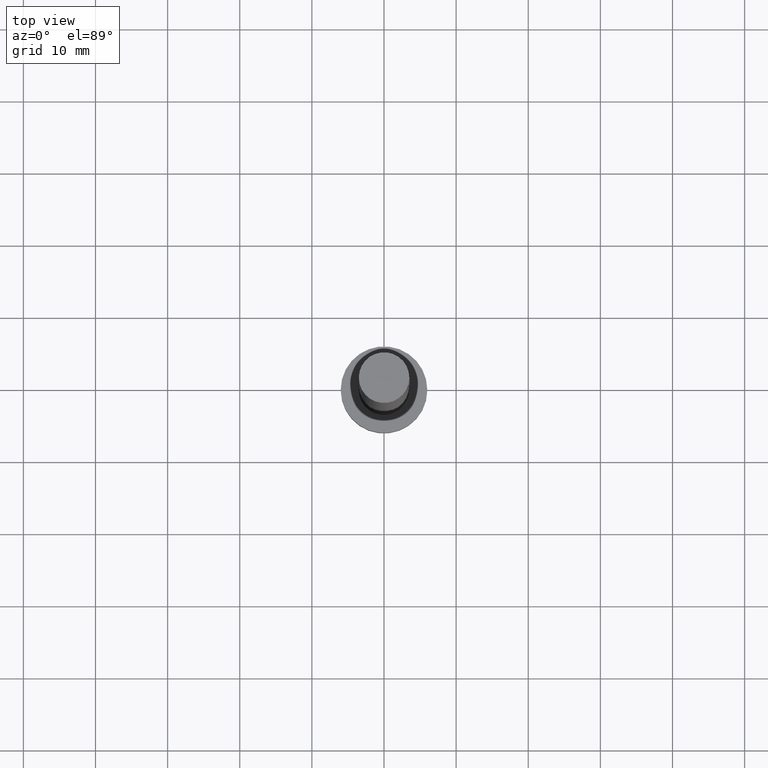
[diagram: clean part render]
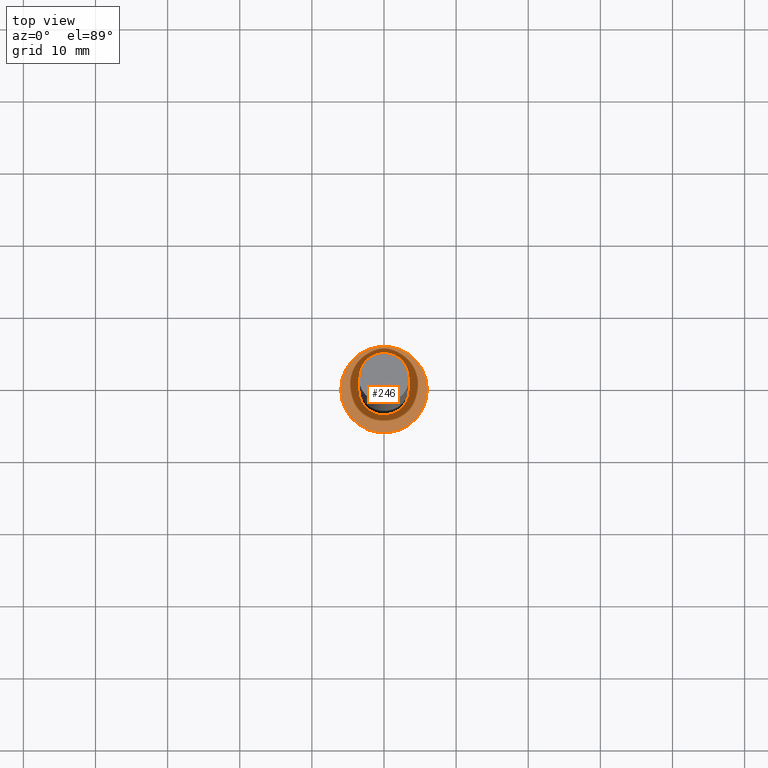
[diagram: same view with one face highlighted and labeled with its STEP entity id]
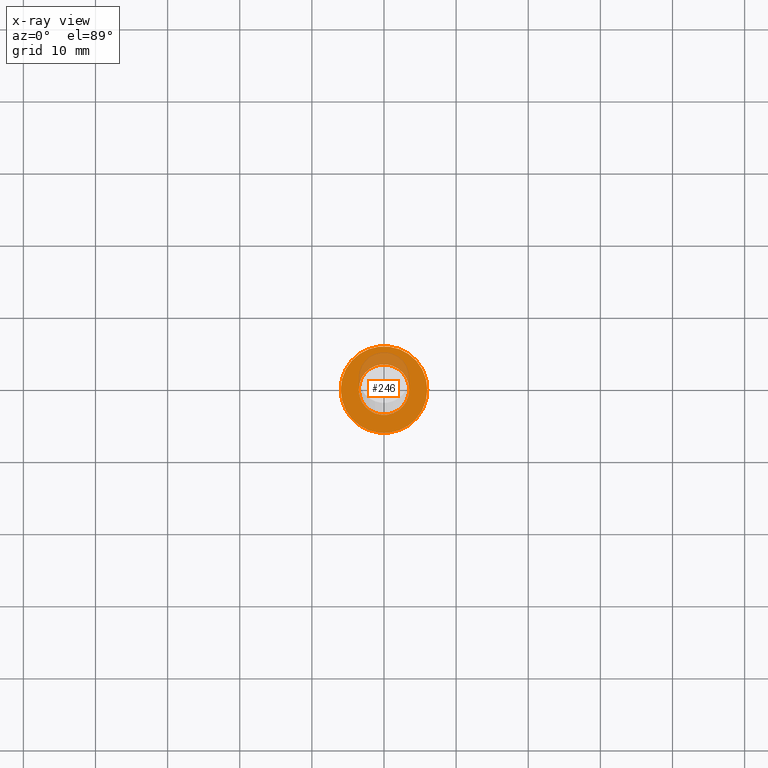
[diagram: x-ray of the same camera — body ghosted, the highlighted face saturated]
A machine part, top view. The second image highlights one B-rep face of the part: STEP entity #246.
The next image is the same camera in x-ray: the body ghosted, the highlighted face saturated — about 16% of this face is hidden behind the body in this view.
In plain terms, the highlighted planar face has unit normal (0, 0, 1).
Its self-contained STEP definition (entity closure, byte-faithful):
#1 = VERTEX_POINT ( 'NONE', #223 ) ;
#4 = ORIENTED_EDGE ( 'NONE', *, *, #13, .T. ) ;
#13 = EDGE_CURVE ( 'NONE', #100, #122, #71, .T. ) ;
#26 = PLANE ( 'NONE',  #200 ) ;
#27 = AXIS2_PLACEMENT_3D ( 'NONE', #148, #226, #109 ) ;
#31 = DIRECTION ( 'NONE',  ( 0.000000000000000000, 0.000000000000000000, 1.000000000000000000 ) ) ;
#33 = DIRECTION ( 'NONE',  ( 0.000000000000000000, 0.000000000000000000, 1.000000000000000000 ) ) ;
#35 = CARTESIAN_POINT ( 'NONE',  ( 0.000000000000000000, 0.000000000000000000, 5.000000000000000000 ) ) ;
#43 = EDGE_LOOP ( 'NONE', ( #255, #4 ) ) ;
#46 = CARTESIAN_POINT ( 'NONE',  ( 3.500000000000000000, 4.286263797015736595E-16, 5.000000000000000000 ) ) ;
#51 = CARTESIAN_POINT ( 'NONE',  ( 0.000000000000000000, 0.000000000000000000, 5.000000000000000000 ) ) ;
#53 = DIRECTION ( 'NONE',  ( 1.000000000000000000, 0.000000000000000000, 0.000000000000000000 ) ) ;
#54 = AXIS2_PLACEMENT_3D ( 'NONE', #186, #31, #53 ) ;
#59 = EDGE_CURVE ( 'NONE', #141, #1, #158, .T. ) ;
#71 = CIRCLE ( 'NONE', #54, 6.000000000000000888 ) ;
#75 = DIRECTION ( 'NONE',  ( 1.000000000000000000, 0.000000000000000000, 0.000000000000000000 ) ) ;
#90 = DIRECTION ( 'NONE',  ( 1.000000000000000000, 0.000000000000000000, -0.000000000000000000 ) ) ;
#100 = VERTEX_POINT ( 'NONE', #154 ) ;
#109 = DIRECTION ( 'NONE',  ( 1.000000000000000000, 0.000000000000000000, 0.000000000000000000 ) ) ;
#118 = ORIENTED_EDGE ( 'NONE', *, *, #59, .F. ) ;
#119 = AXIS2_PLACEMENT_3D ( 'NONE', #51, #248, #171 ) ;
#122 = VERTEX_POINT ( 'NONE', #235 ) ;
#126 = FACE_OUTER_BOUND ( 'NONE', #43, .T. ) ;
#137 = CIRCLE ( 'NONE', #27, 6.000000000000000888 ) ;
#141 = VERTEX_POINT ( 'NONE', #46 ) ;
#143 = FACE_BOUND ( 'NONE', #237, .T. ) ;
#148 = CARTESIAN_POINT ( 'NONE',  ( 0.000000000000000000, 0.000000000000000000, 5.000000000000000000 ) ) ;
#154 = CARTESIAN_POINT ( 'NONE',  ( 6.000000000000000888, 7.347880794884120722E-16, 5.000000000000000000 ) ) ;
#158 = CIRCLE ( 'NONE', #119, 3.500000000000000000 ) ;
#162 = EDGE_CURVE ( 'NONE', #1, #141, #219, .T. ) ;
#164 = CARTESIAN_POINT ( 'NONE',  ( 0.000000000000000000, 0.000000000000000000, 5.000000000000000000 ) ) ;
#171 = DIRECTION ( 'NONE',  ( 1.000000000000000000, 0.000000000000000000, 0.000000000000000000 ) ) ;
#186 = CARTESIAN_POINT ( 'NONE',  ( 0.000000000000000000, 0.000000000000000000, 5.000000000000000000 ) ) ;
#197 = EDGE_CURVE ( 'NONE', #122, #100, #137, .T. ) ;
#200 = AXIS2_PLACEMENT_3D ( 'NONE', #164, #33, #90 ) ;
#215 = ORIENTED_EDGE ( 'NONE', *, *, #162, .F. ) ;
#219 = CIRCLE ( 'NONE', #253, 3.500000000000000000 ) ;
#223 = CARTESIAN_POINT ( 'NONE',  ( -3.500000000000000000, 0.000000000000000000, 5.000000000000000000 ) ) ;
#226 = DIRECTION ( 'NONE',  ( 0.000000000000000000, 0.000000000000000000, 1.000000000000000000 ) ) ;
#235 = CARTESIAN_POINT ( 'NONE',  ( -6.000000000000000888, 0.000000000000000000, 5.000000000000000000 ) ) ;
#237 = EDGE_LOOP ( 'NONE', ( #215, #118 ) ) ;
#246 = ADVANCED_FACE ( 'NONE', ( #143, #126 ), #26, .T. ) ;
#248 = DIRECTION ( 'NONE',  ( 0.000000000000000000, 0.000000000000000000, 1.000000000000000000 ) ) ;
#249 = DIRECTION ( 'NONE',  ( 0.000000000000000000, 0.000000000000000000, 1.000000000000000000 ) ) ;
#253 = AXIS2_PLACEMENT_3D ( 'NONE', #35, #249, #75 ) ;
#255 = ORIENTED_EDGE ( 'NONE', *, *, #197, .T. ) ;